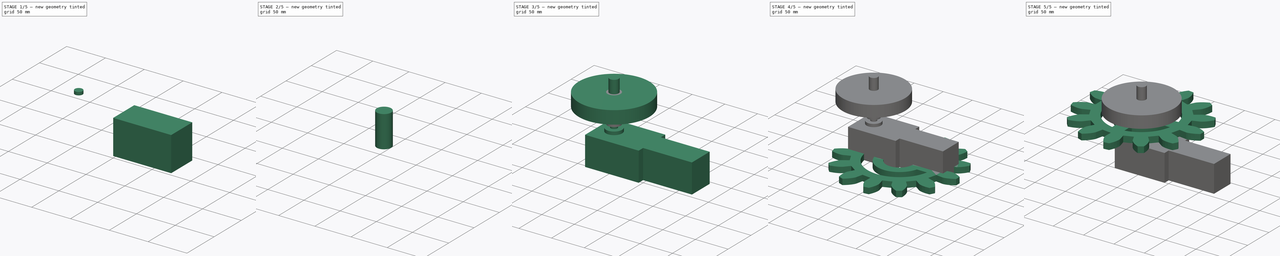
[diagram: build sequence overview — one tinted view per stage of 5, left to right]
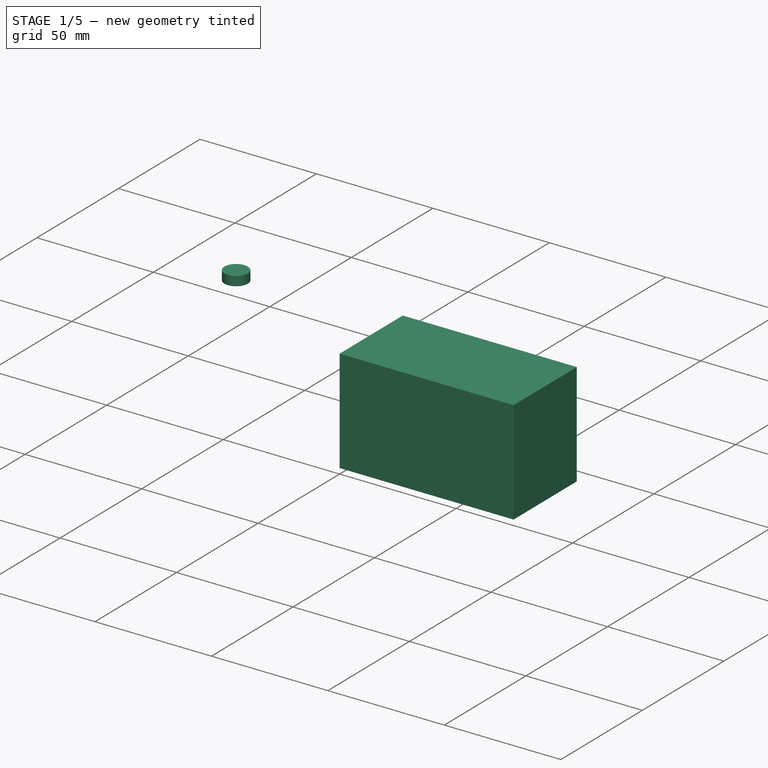
[diagram: stage 1 of 5 — iso view after this stage's code; geometry added in this stage tinted green]
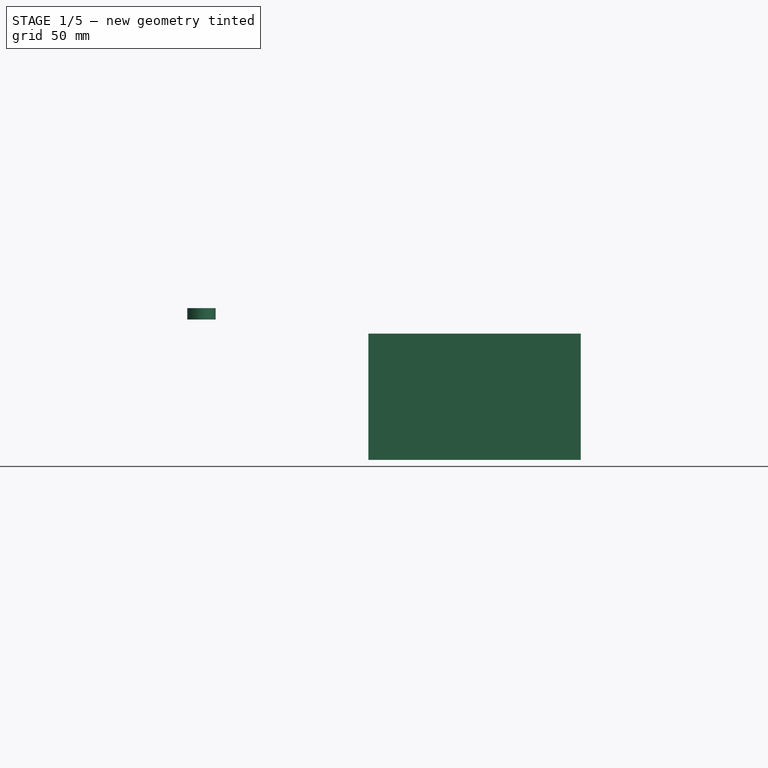
[diagram: stage 1 of 5 — front view after this stage's code; geometry added in this stage tinted green]
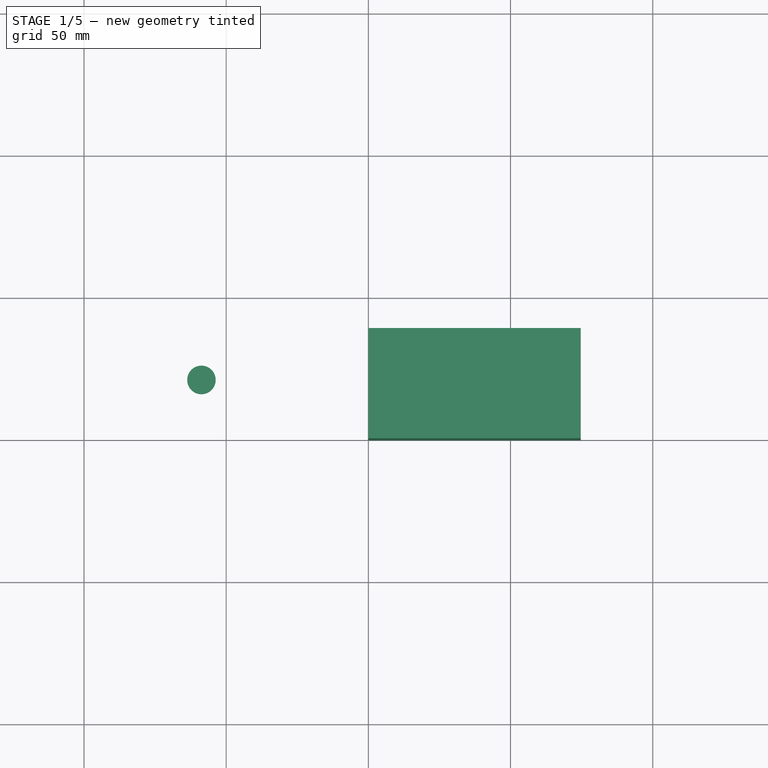
[diagram: stage 1 of 5 — top view after this stage's code; geometry added in this stage tinted green]
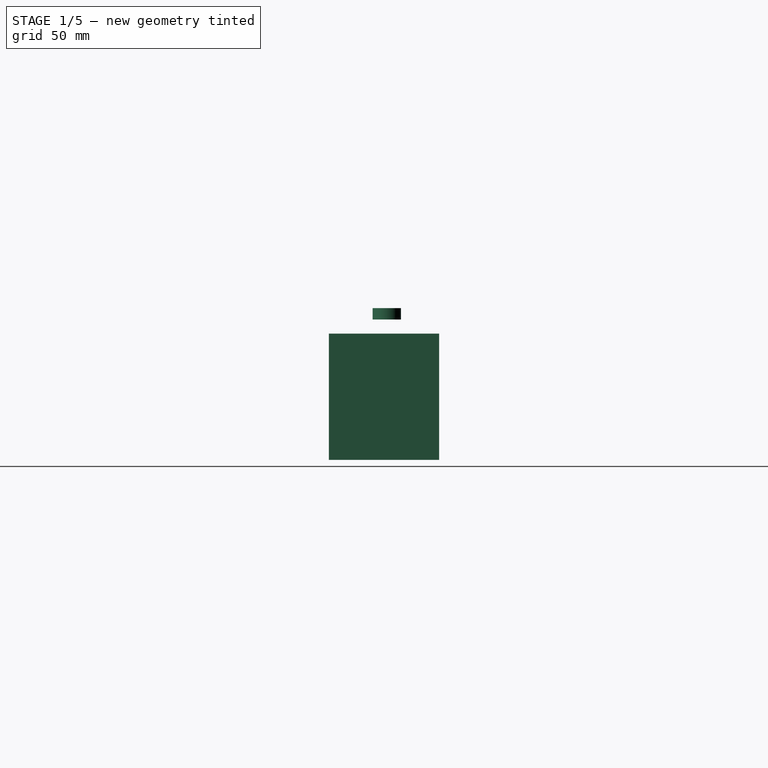
[diagram: stage 1 of 5 — right view after this stage's code; geometry added in this stage tinted green]
FCSTD DOCUMENT  (FreeCAD 0.20R29177 +426 (Git))
Label: encoderMountDesign
License: All rights reserved
LicenseURL: http://en.wikipedia.org/wiki/All_rights_reserved
objects: Part::Box×6, Sketcher::SketchObject×6, Part::Extrusion×6, Part::MultiFuse×3, Part::Fuse×3, Part::FeaturePython×2, Part::Cylinder×1, Part::Cut×1
note: 28 computed .brp shape members not serialized (recipe doc carries the construction recipe); baked Part::Feature solids carry a one-line shape summary decoded from their .brp

FEATURE [Part::Box] Box  label="Cube"
  AttacherType = Attacher::AttachEngine3D
  Height = 44.4
  Length = 74.7
  Width = 38.74
FEATURE [Part::Box] Box001  label="Cube001"
  AttacherType = Attacher::AttachEngine3D
  Height = 44.4
  Length = 82
  Placement = pos=(-82,-9.63,0) rot=(0,0,1;0rad)
  Width = 58
FEATURE [Sketcher::SketchObject] Sketch
  ExternalGeometry = -> [Box001]
  FullyConstrained = true
  MapMode = 5
  Placement = pos=(-82,-9.63,44.4) rot=(0,0,1;0rad)
  Support = -> [Box001]
  sketch-geometry (2):
    g0: Circle CenterX=23.3 CenterY=30 CenterZ=0 NormalX=0 NormalY=0 NormalZ=1 AngleXU=0 Radius=12.3
    g1: GeomPoint X=23.3 Y=58 Z=0
  constraints (5):
    c: DistanceX(g0) = 23.3
    c: PointOnObject(g1,g-4)
    c: DistanceX(g-4,g1) = 23.3
    c: DistanceY(g0,g1) = 28
    c: Diameter(g0) = 24.6
FEATURE [Part::Extrusion] Extrude
  Base = -> Sketch
  Dir = (0,0,1)
  DirMode = 2
  FaceMakerClass = Part::FaceMakerBullseye
  LengthFwd = 5
  LengthRev = 0
  Solid = true
  Symmetric = false
FEATURE [Sketcher::SketchObject] Sketch001
  ExternalGeometry = -> [Extrude,Box001]
  FullyConstrained = true
  MapMode = 5
  Placement = pos=(0,0,49.4) rot=(0,0,1;0rad)
  Support = -> [Extrude]
  sketch-geometry (3):
    g0: GeomPoint X=-82 Y=20.37 Z=0
    g1: GeomPoint X=-58.7 Y=48.37 Z=0
    g2: Circle CenterX=-58.7 CenterY=20.37 CenterZ=0 NormalX=0 NormalY=0 NormalZ=1 AngleXU=0 Radius=5
  constraints (6):
    c: PointOnObject(g0,g-4)
    c: PointOnObject(g1,g-5)
    c: DistanceY(g0,g-5) = 28
    c: DistanceX(g-5,g1) = 23.3
    c: Diameter(g2) = 10
    c: Coincident(g2,g-3)
FEATURE [Part::Extrusion] Extrude001
  Base = -> Sketch001
  Dir = (0,0,1)
  DirMode = 2
  FaceMakerClass = Part::FaceMakerBullseye
  LengthFwd = 4
  LengthRev = 0
  Solid = true
  Symmetric = false
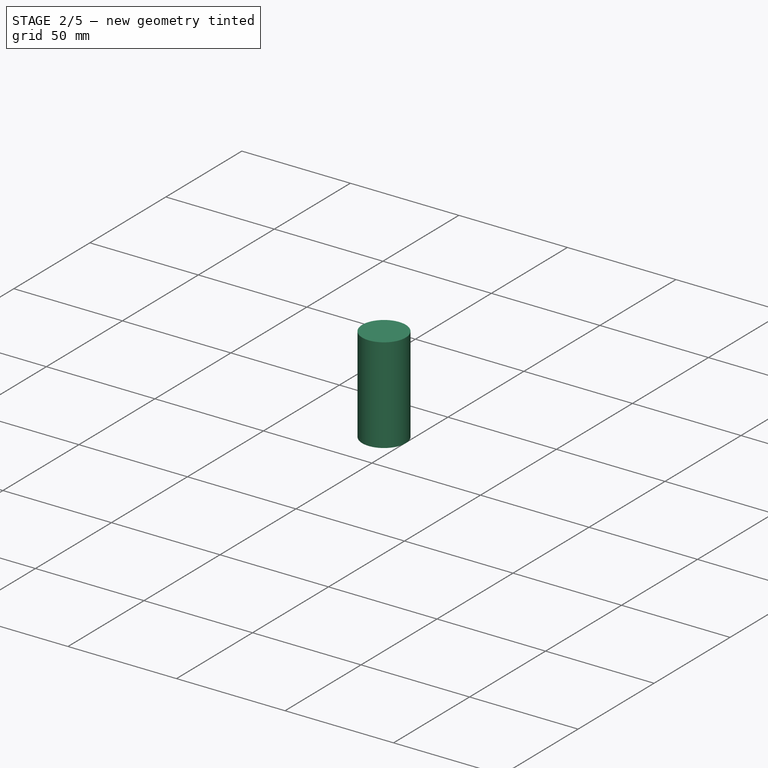
[diagram: stage 2 of 5 — iso view after this stage's code; geometry added in this stage tinted green]
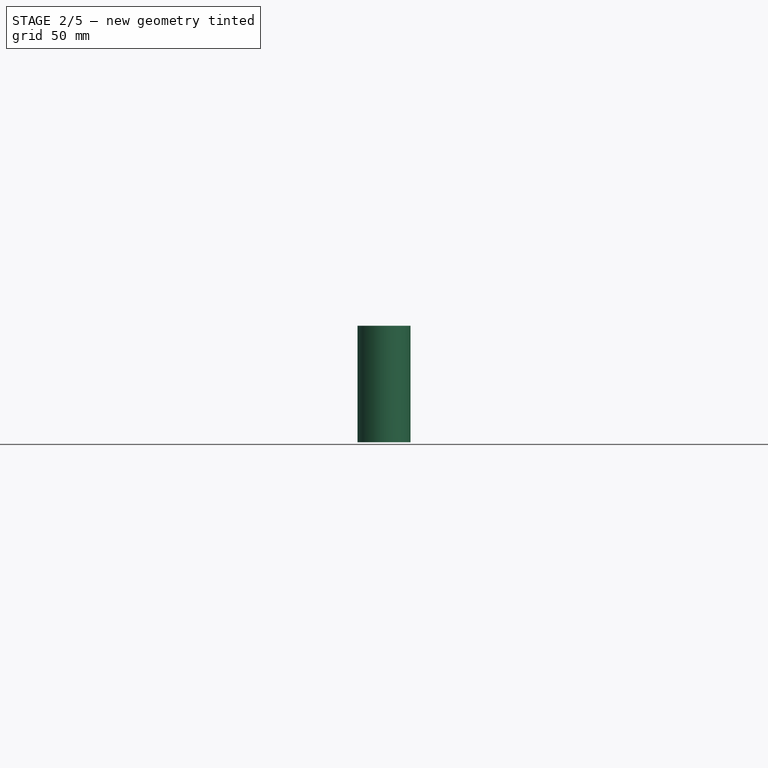
[diagram: stage 2 of 5 — front view after this stage's code; geometry added in this stage tinted green]
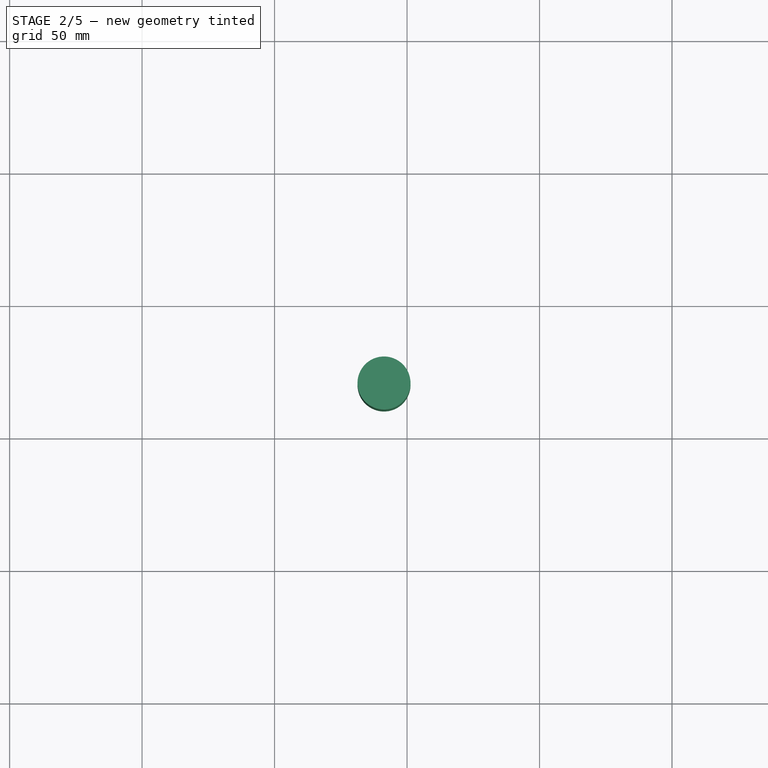
[diagram: stage 2 of 5 — top view after this stage's code; geometry added in this stage tinted green]
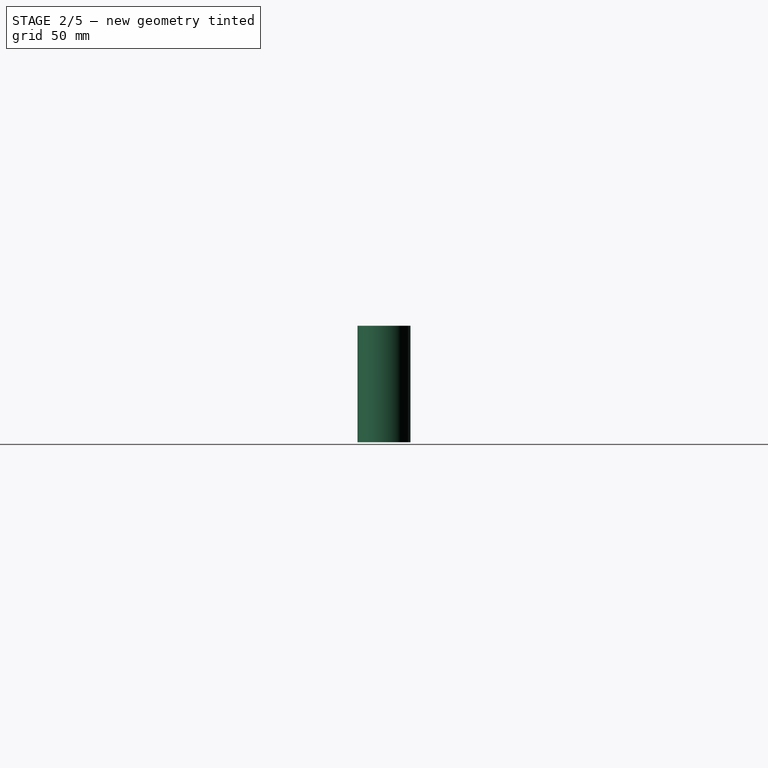
[diagram: stage 2 of 5 — right view after this stage's code; geometry added in this stage tinted green]
FEATURE [Part::Fuse] Fusion
  Base = -> Box
  Tool = -> Box001
FEATURE [Part::Fuse] Fusion002
  Base = -> Fusion
  Tool = -> Extrude
FEATURE [Part::Fuse] Fusion003  label="motorBody"
  Base = -> Fusion002
  Tool = -> Extrude001
FEATURE [Sketcher::SketchObject] Sketch002
  ExternalGeometry = -> [Extrude001]
  FullyConstrained = true
  MapMode = 5
  Placement = pos=(0,0,53.4) rot=(0,0,1;0rad)
  Support = -> [Extrude001]
  sketch-geometry (2):
    g0: LineSegment StartX=-62.7 StartY=23.37 StartZ=0 EndX=-62.7 EndY=17.37 EndZ=0
    g1: ArcOfCircle CenterX=-58.7 CenterY=20.37 CenterZ=0 NormalX=0 NormalY=0 NormalZ=1 AngleXU=0 Radius=5 StartAngle=3.78509 EndAngle=8.78128
  constraints (6):
    c: PointOnObject(g0,g-3)
    c: Vertical(g0)
    c: Coincident(g1,g-3)
    c: Coincident(g1,g0)
    c: Coincident(g1,g0)
    c: DistanceX(g0,g1) = 4
FEATURE [Part::Extrusion] Extrude002  label="shaftD"
  Base = -> Sketch002
  Dir = (0,0,1)
  DirMode = 2
  FaceMakerClass = Part::FaceMakerBullseye
  LengthFwd = 15
  LengthRev = 0
  Solid = true
  Symmetric = false
FEATURE [Sketcher::SketchObject] Sketch003
  ExternalGeometry = -> [Fusion003]
  FullyConstrained = true
  MapMode = 5
  Placement = pos=(0,0,68.4) rot=(0,0,1;0rad)
  Support = -> [Extrude002]
  sketch-geometry (1):
    g0: Circle CenterX=-58.7 CenterY=20.37 CenterZ=0 NormalX=0 NormalY=0 NormalZ=1 AngleXU=0 Radius=10
  constraints (2):
    c: Coincident(g0,g-3)
    c: Radius(g0) = 10
FEATURE [Part::Extrusion] Extrude003  label="innerCylinder"
  Base = -> Sketch003
  Dir = (0,0,1)
  DirMode = 2
  FaceMakerClass = Part::FaceMakerBullseye
  LengthFwd = 30
  LengthRev = 14
  Solid = true
  Symmetric = false
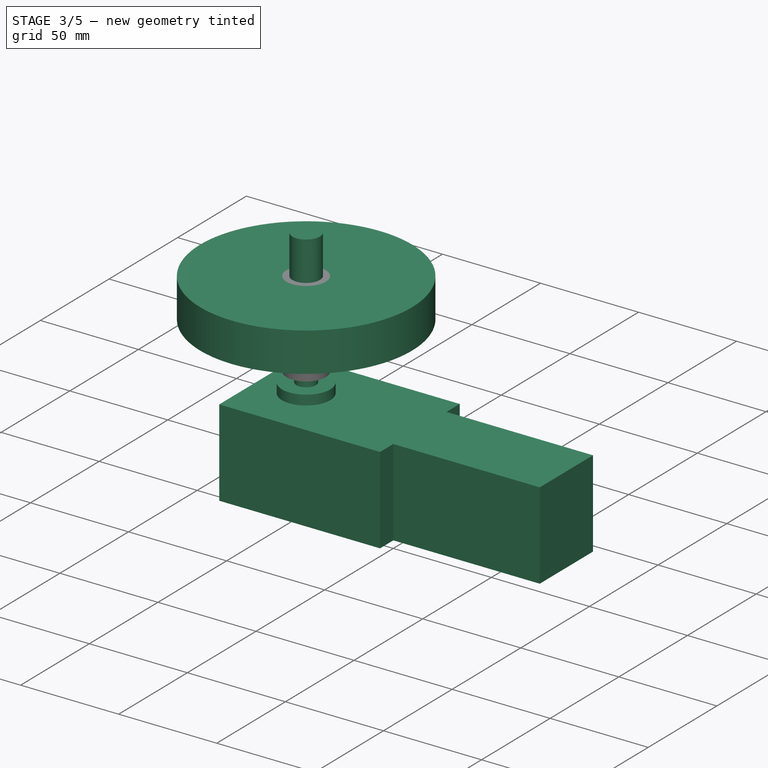
[diagram: stage 3 of 5 — iso view after this stage's code; geometry added in this stage tinted green]
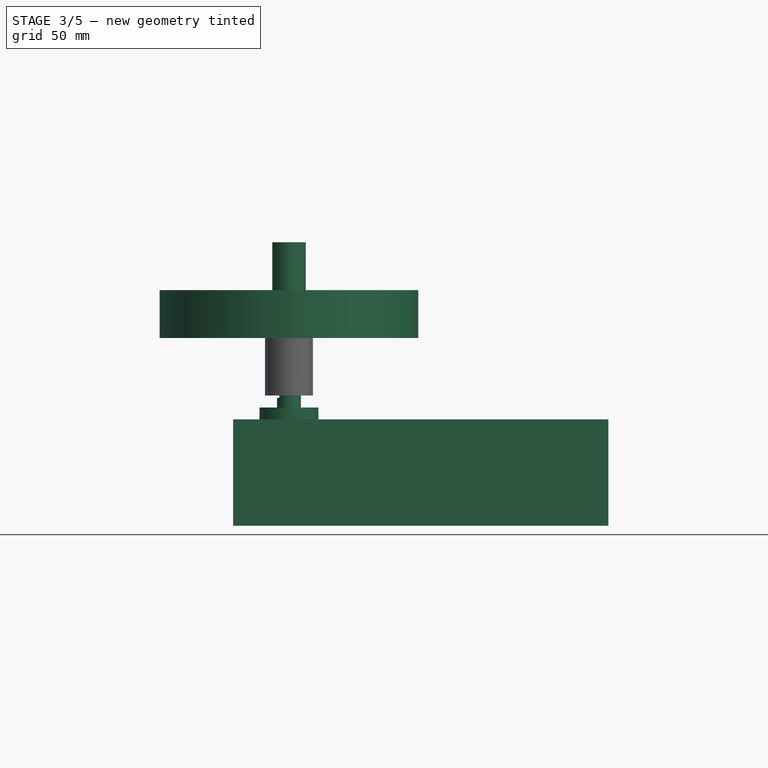
[diagram: stage 3 of 5 — front view after this stage's code; geometry added in this stage tinted green]
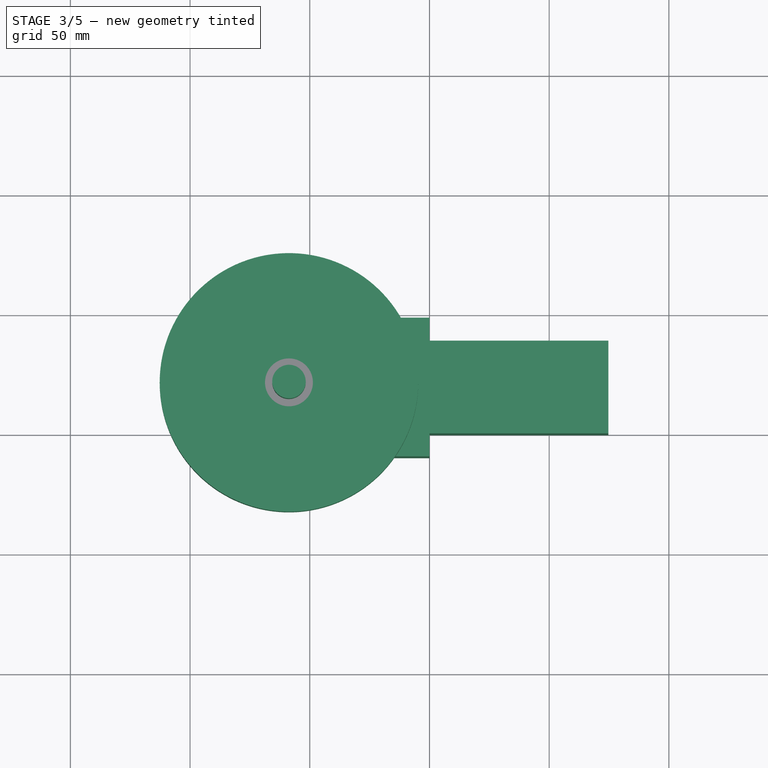
[diagram: stage 3 of 5 — top view after this stage's code; geometry added in this stage tinted green]
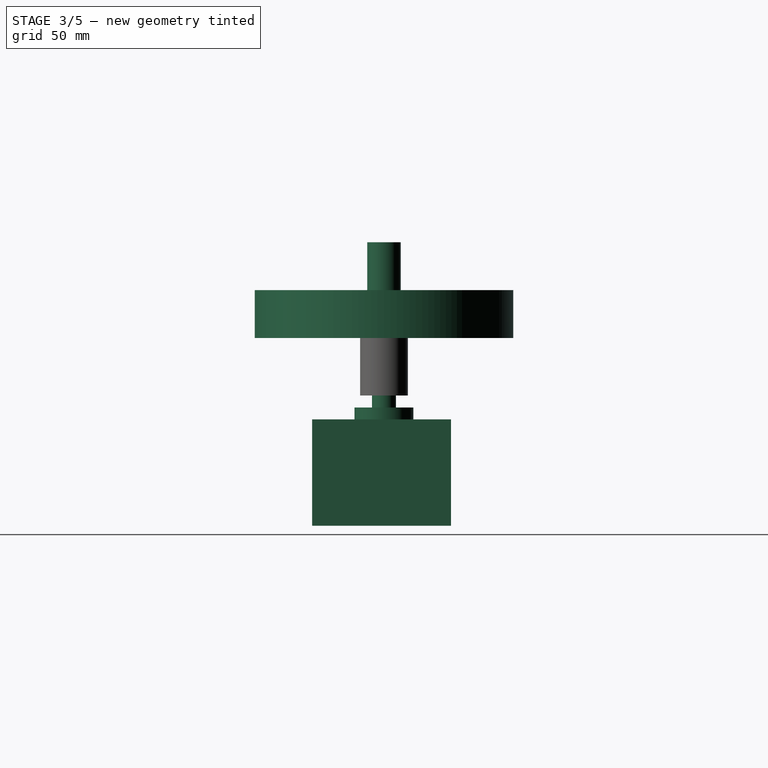
[diagram: stage 3 of 5 — right view after this stage's code; geometry added in this stage tinted green]
FEATURE [Sketcher::SketchObject] Sketch004
  ExternalGeometry = -> [Extrude003]
  FullyConstrained = true
  MapMode = 5
  Placement = pos=(0,0,98.4) rot=(0,0,1;0rad)
  Support = -> [Extrude003]
  sketch-geometry (1):
    g0: Circle CenterX=-58.7 CenterY=20.37 CenterZ=0 NormalX=0 NormalY=0 NormalZ=1 AngleXU=0 Radius=54
  constraints (2):
    c: Coincident(g0,g-3)
    c: Radius(g0) = 54
FEATURE [Part::Extrusion] Extrude004  label="outerCylinder"
  Base = -> Sketch004
  Dir = (0,0,1)
  DirMode = 2
  FaceMakerClass = Part::FaceMakerBullseye
  LengthFwd = 0
  LengthRev = 20
  Solid = true
  Symmetric = false
FEATURE [Part::MultiFuse] Fusion004  label="motor"
  Shapes = -> [Extrude002,Fusion003]
FEATURE [Sketcher::SketchObject] Sketch005
  ExternalGeometry = -> [Extrude004]
  FullyConstrained = true
  MapMode = 5
  Placement = pos=(0,0,98.4) rot=(0,0,1;0rad)
  Support = -> [Extrude003]
  sketch-geometry (1):
    g0: Circle CenterX=-58.7 CenterY=20.37 CenterZ=0 NormalX=0 NormalY=0 NormalZ=1 AngleXU=0 Radius=7
  constraints (2):
    c: Coincident(g0,g-3)
    c: Radius(g0) = 7
FEATURE [Part::Extrusion] Extrude005  label="encoderShaft"
  Base = -> Sketch005
  Dir = (0,0,1)
  DirMode = 2
  FaceMakerClass = Part::FaceMakerBullseye
  LengthFwd = 20
  LengthRev = 0
  Solid = true
  Symmetric = false
FEATURE [Part::MultiFuse] Fusion005  label="motorAdapter"
  Shapes = -> [Extrude005,Extrude004,Extrude003]
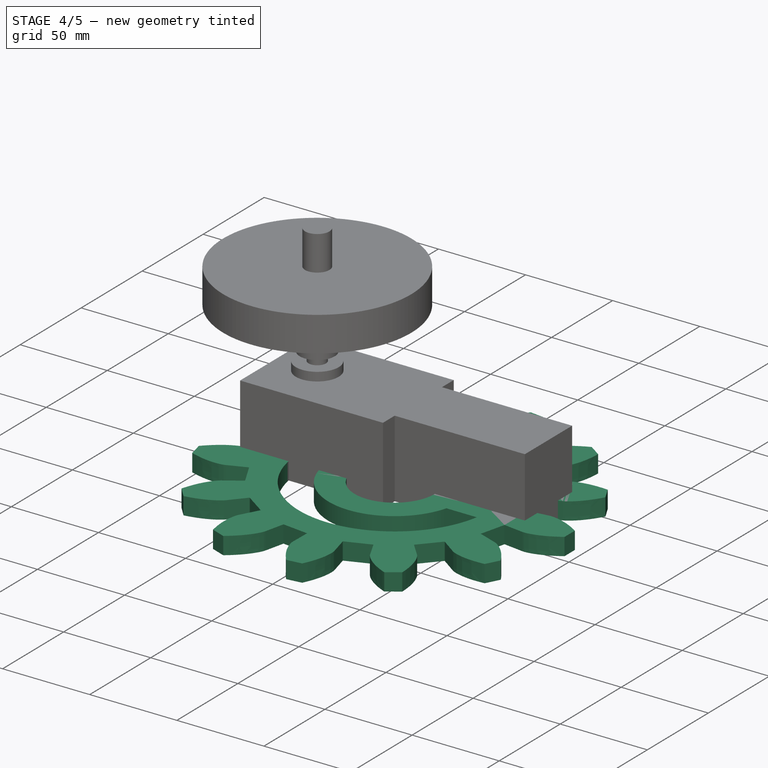
[diagram: stage 4 of 5 — iso view after this stage's code; geometry added in this stage tinted green]
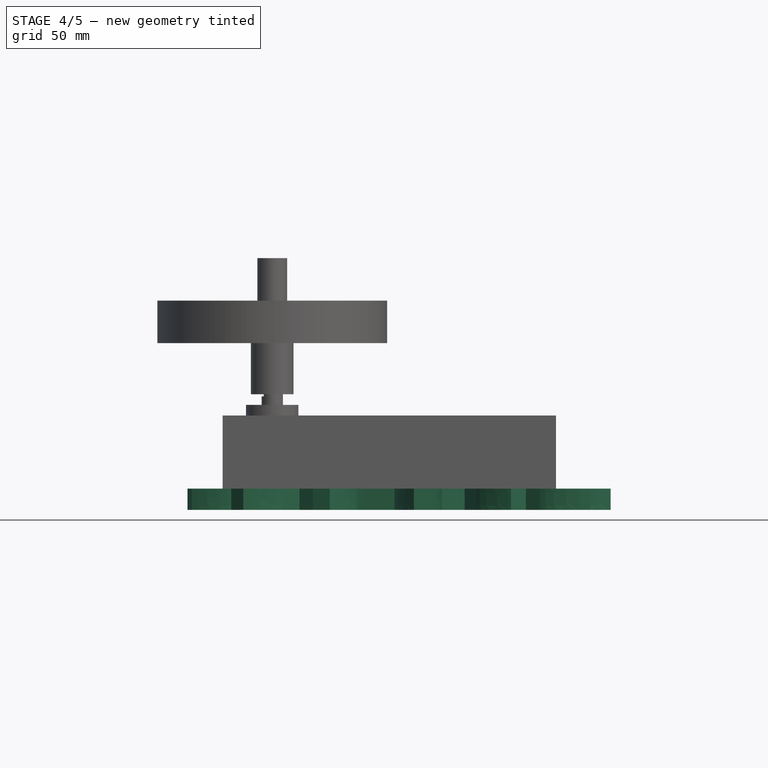
[diagram: stage 4 of 5 — front view after this stage's code; geometry added in this stage tinted green]
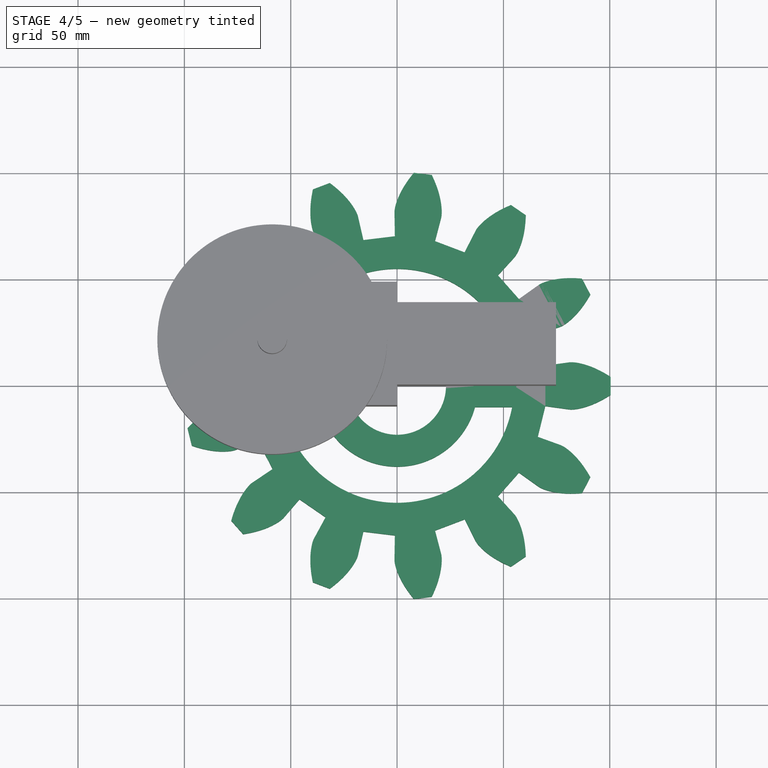
[diagram: stage 4 of 5 — top view after this stage's code; geometry added in this stage tinted green]
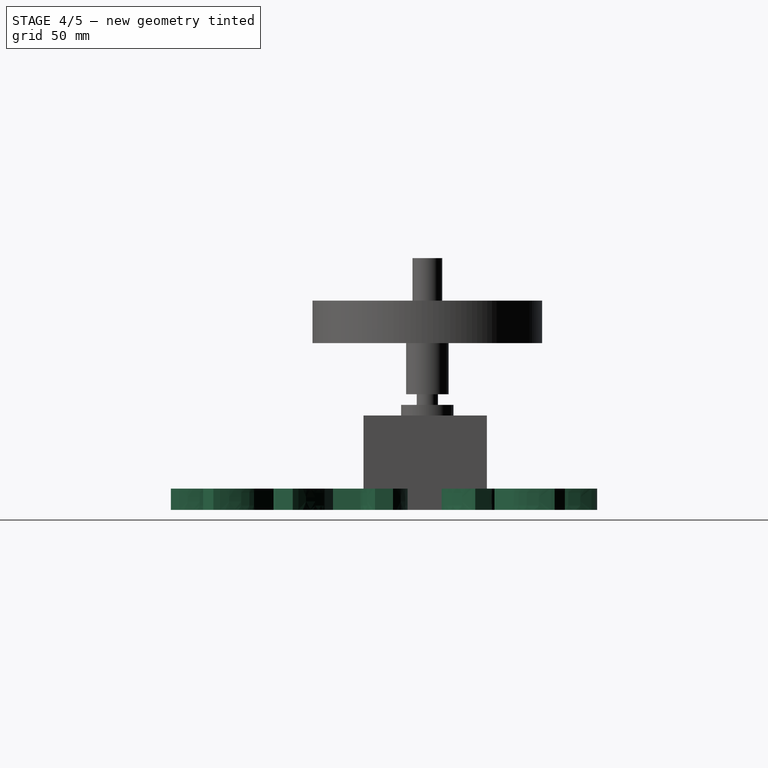
[diagram: stage 4 of 5 — right view after this stage's code; geometry added in this stage tinted green]
FEATURE [Part::Box] Box007  label="Cube007"
  AttacherType = Attacher::AttachEngine3D
  Height = 10
  Length = 20
  Placement = pos=(36,-10,0) rot=(0,0,1;0rad)
  Width = 20
FEATURE [Part::Cylinder] Cylinder001
  Angle = 360
  AttacherType = Attacher::AttachEngine3D
  FirstAngle = 0
  Height = 10
  Radius = 55
  SecondAngle = 0
FEATURE [Part::FeaturePython] InvoluteGear001  # WARN: FeaturePython — macro-defined, semantics opaque (R4)
  AttacherType = Attacher::AttachEngine3D
  angular_backlash = 0
  backlash = 0
  beta = 0
  clearance = 0.25
  da = 201
  df = 140.7
  double_helix = false
  dw = 174.2
  head = 0
  head_fillet = 0
  height = 10
  module = 13.4
  numpoints = 6
  pressure_angle = 20
  properties_from_tool = false
  reversed_backlash = false
  root_fillet = 0
  shift = 0
  simple = false
  teeth = 13
  transverse_pitch = 42.0973
  traverse_module = 13.4
  undercut = false
  version = 0.0.4
  expr: angular_backlash = backlash / dw * 360° / pi
FEATURE [Part::Cut] Cut001
  Base = -> InvoluteGear001
  Tool = -> Cylinder001
FEATURE [Part::FeaturePython] Tube001  # WARN: FeaturePython — macro-defined, semantics opaque (R4)
  AttacherType = Attacher::AttachEngine3D
  Height = 10
  InnerRadius = 23
  OuterRadius = 38
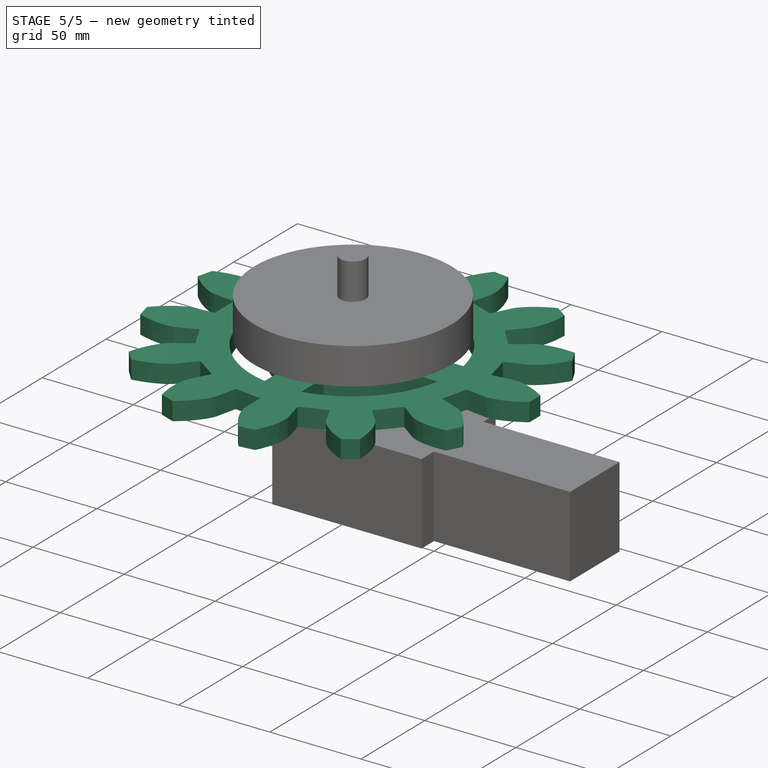
[diagram: stage 5 of 5 — iso view after this stage's code; geometry added in this stage tinted green]
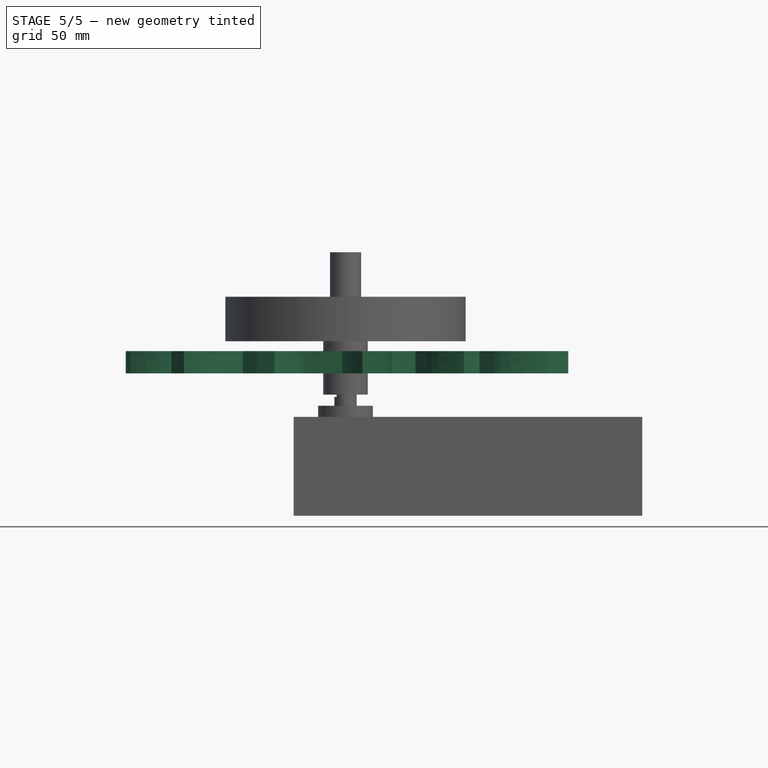
[diagram: stage 5 of 5 — front view after this stage's code; geometry added in this stage tinted green]
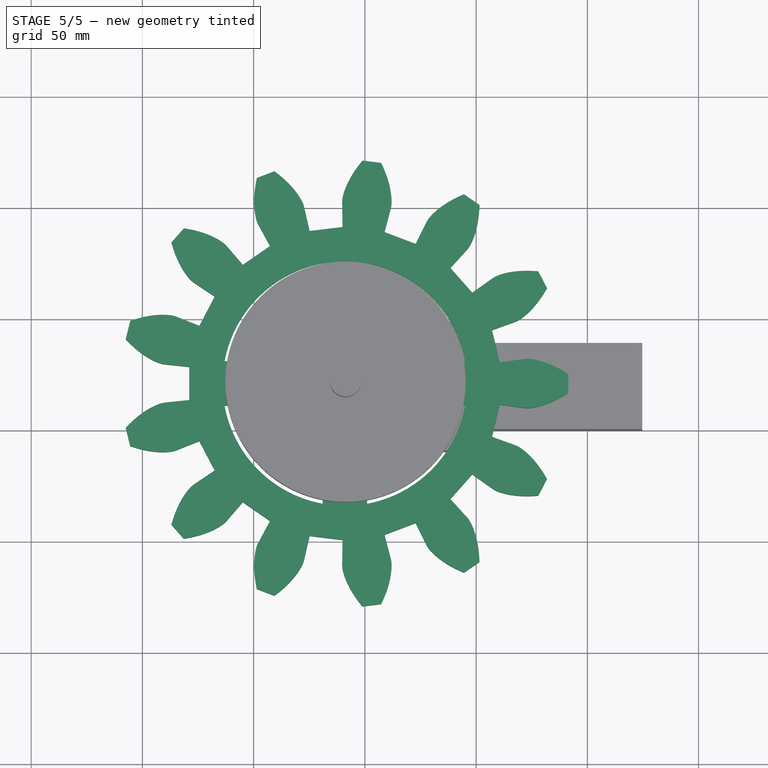
[diagram: stage 5 of 5 — top view after this stage's code; geometry added in this stage tinted green]
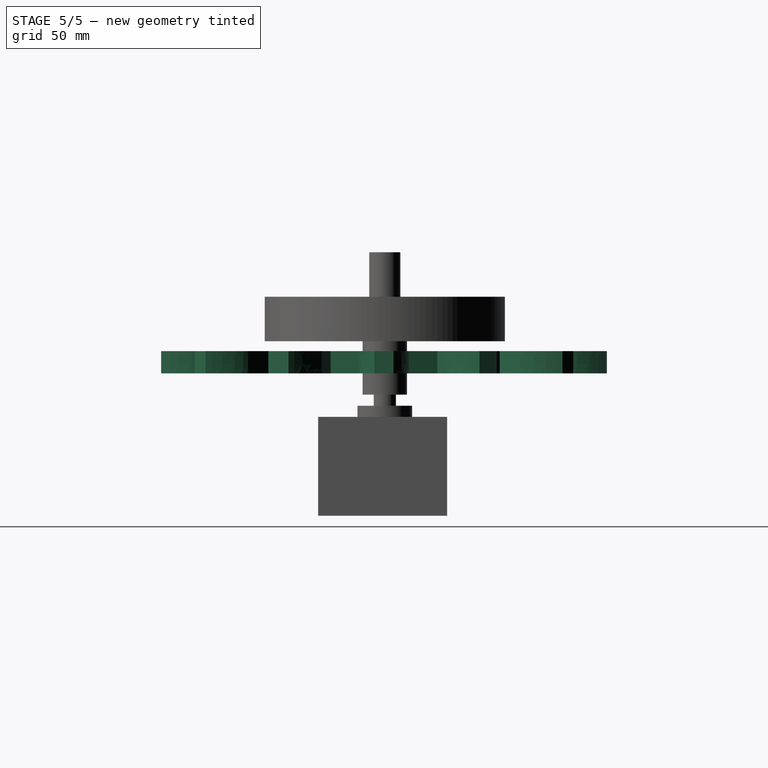
[diagram: stage 5 of 5 — right view after this stage's code; geometry added in this stage tinted green]
FEATURE [Part::Box] Box004  label="Cube004"
  AttacherType = Attacher::AttachEngine3D
  Height = 10
  Length = 20
  Placement = pos=(-10,-55,0) rot=(0,0,1;0rad)
  Width = 20
FEATURE [Part::Box] Box005  label="Cube005"
  AttacherType = Attacher::AttachEngine3D
  Height = 10
  Length = 20
  Placement = pos=(-10,36,0) rot=(0,0,1;0rad)
  Width = 20
FEATURE [Part::Box] Box006  label="Cube006"
  AttacherType = Attacher::AttachEngine3D
  Height = 10
  Length = 20
  Placement = pos=(-55,-10,0) rot=(0,0,1;0rad)
  Width = 20
FEATURE [Part::MultiFuse] Fusion001  label="MotorGear"
  Placement = pos=(-59,20,64) rot=(0,0,1;0rad)
  Shapes = -> [Tube001,Cut001,Box004,Box005,Box006,Box007]
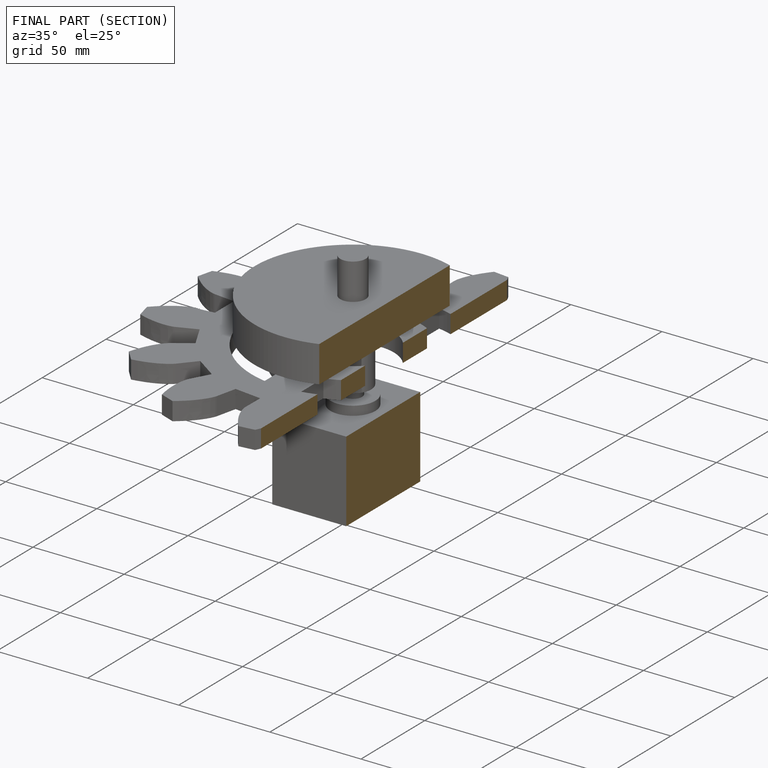
[diagram: finished part — half-section view (interior)]
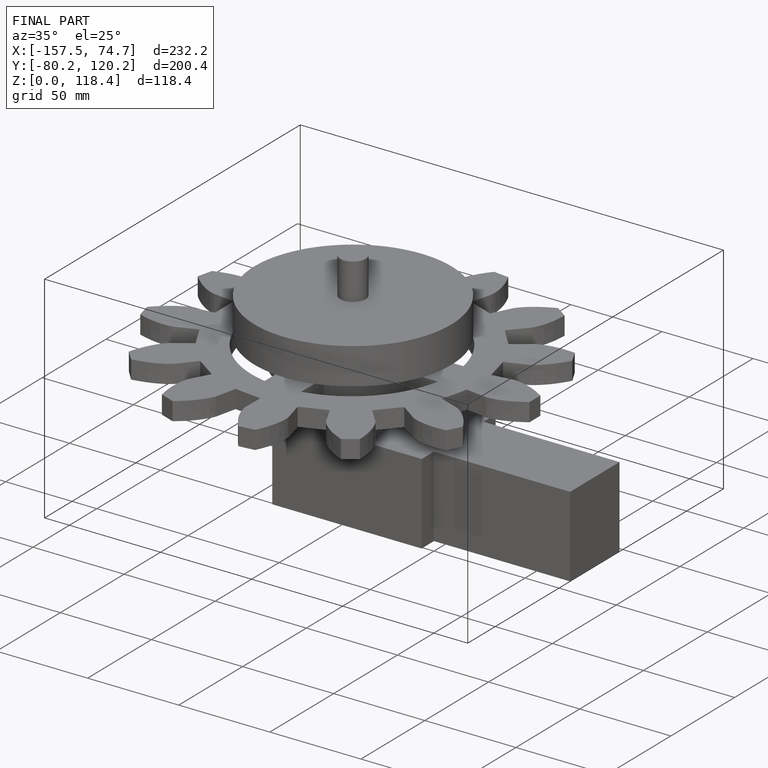
[diagram: finished part — iso view with bounding-box wireframe]
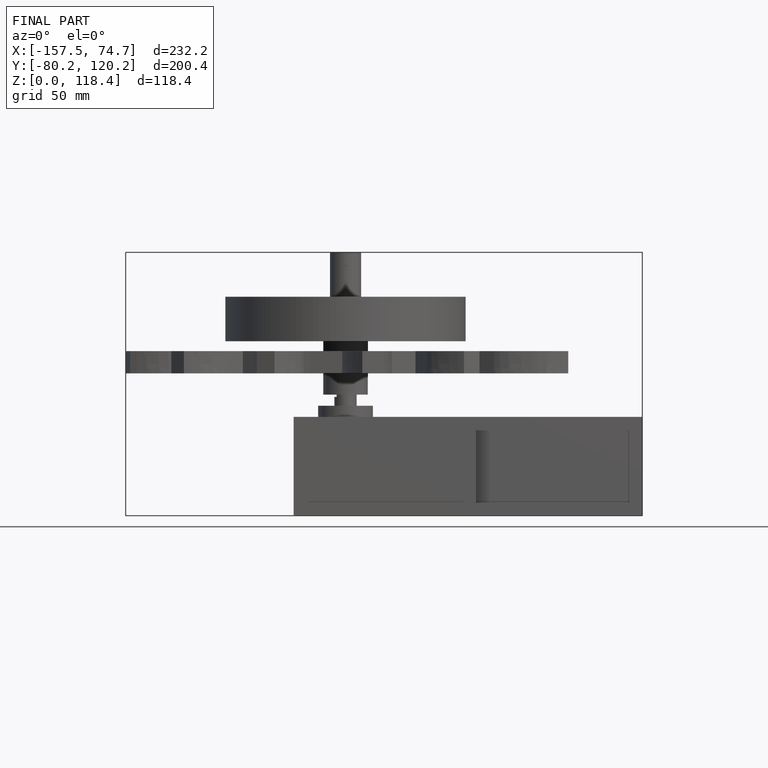
[diagram: finished part — front view with bounding-box wireframe]
